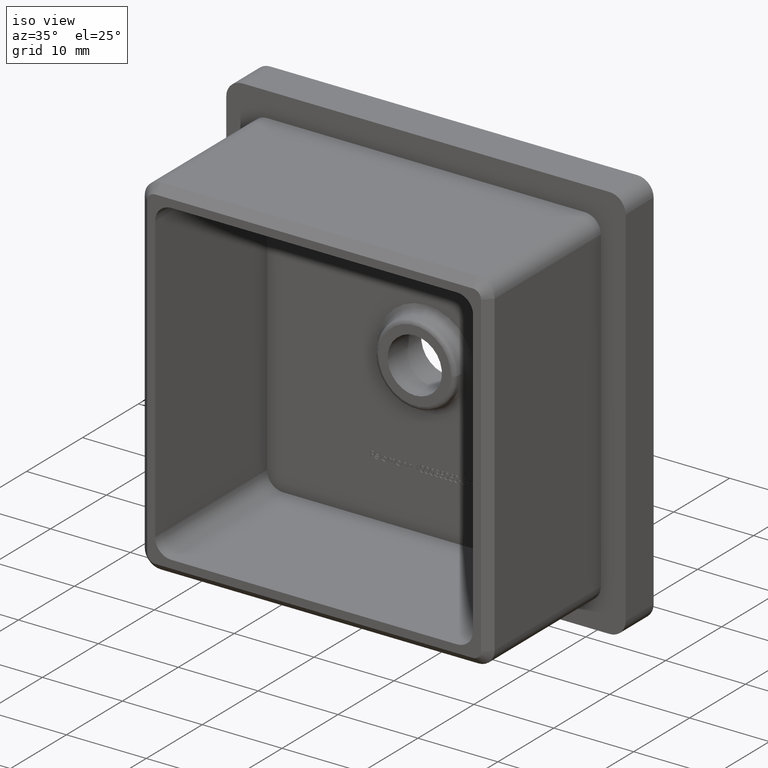
[diagram: clean part render]
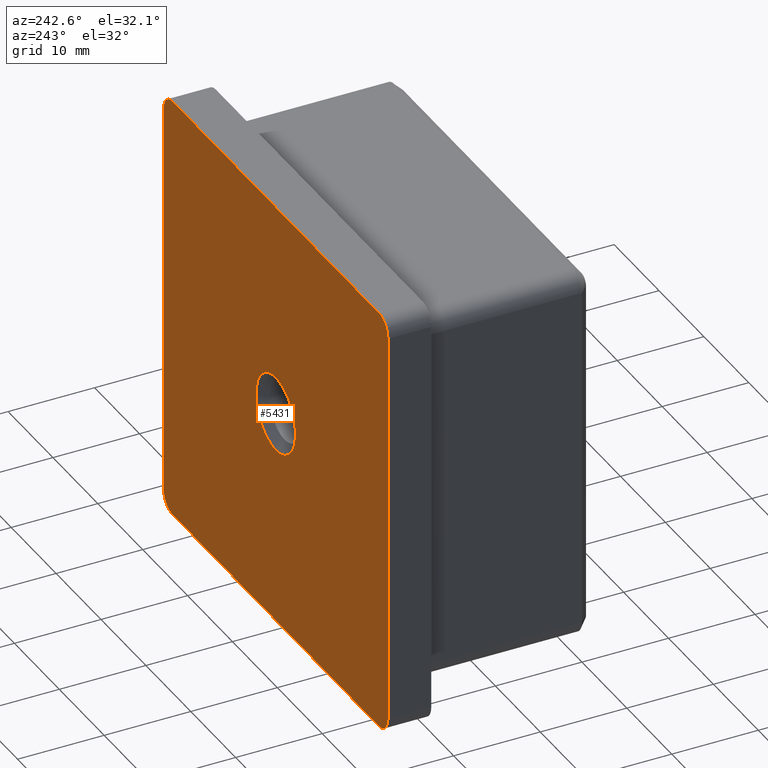
[diagram: tour spotlight — one face highlighted and labeled with its STEP entity id]
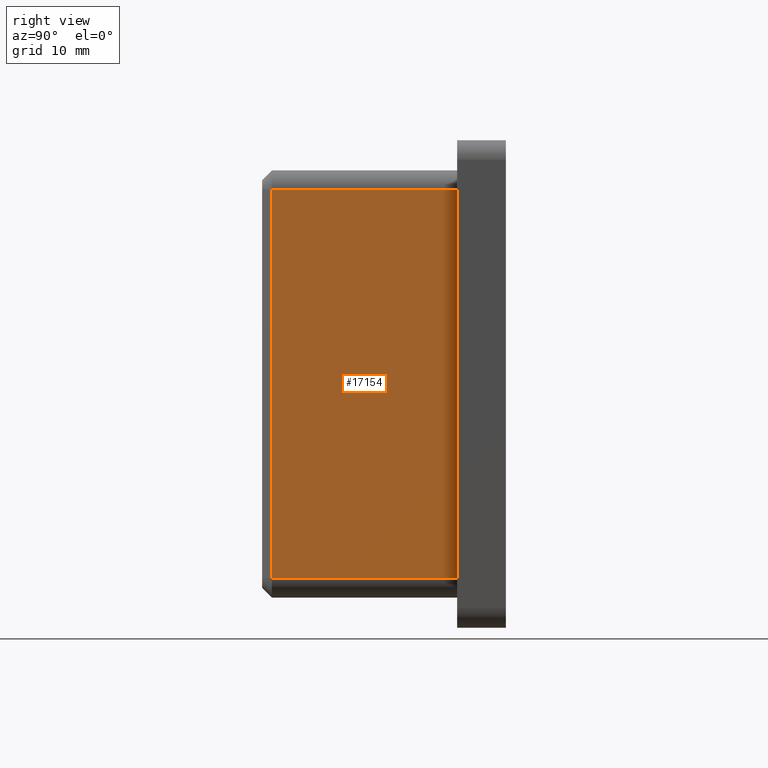
[diagram: tour spotlight — one face highlighted and labeled with its STEP entity id]
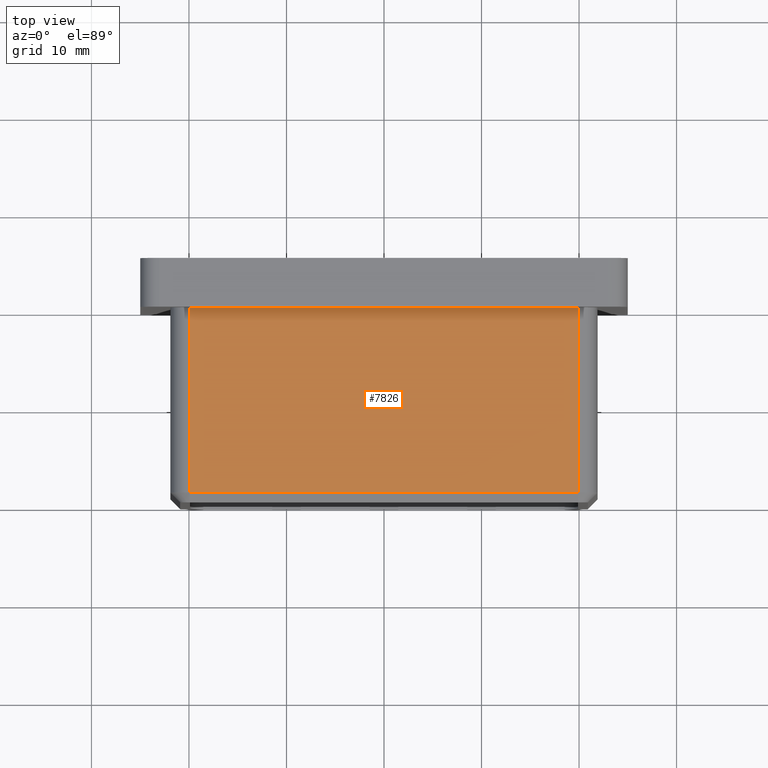
[diagram: tour spotlight — one face highlighted and labeled with its STEP entity id]
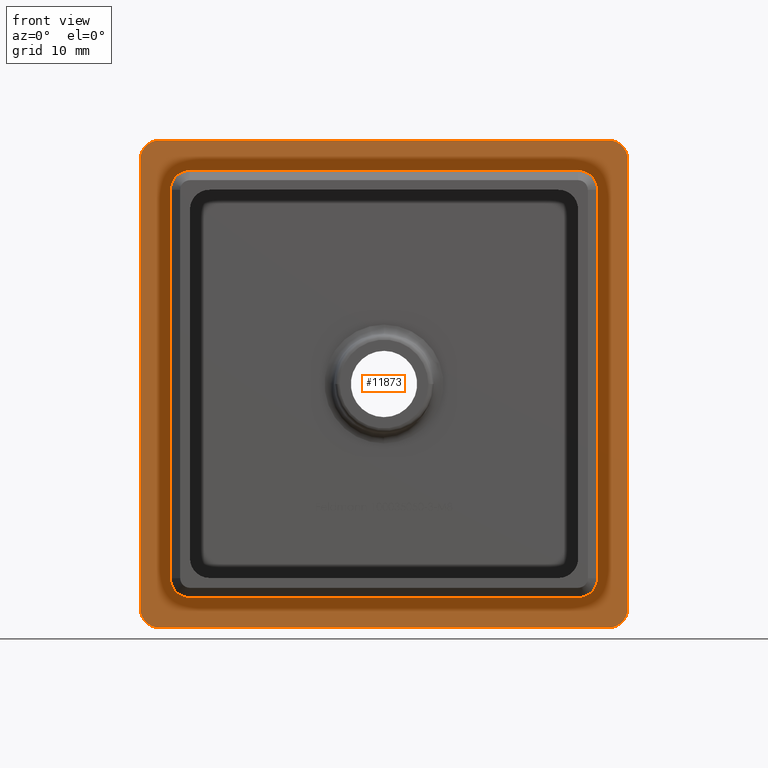
[diagram: tour spotlight — one face highlighted and labeled with its STEP entity id]
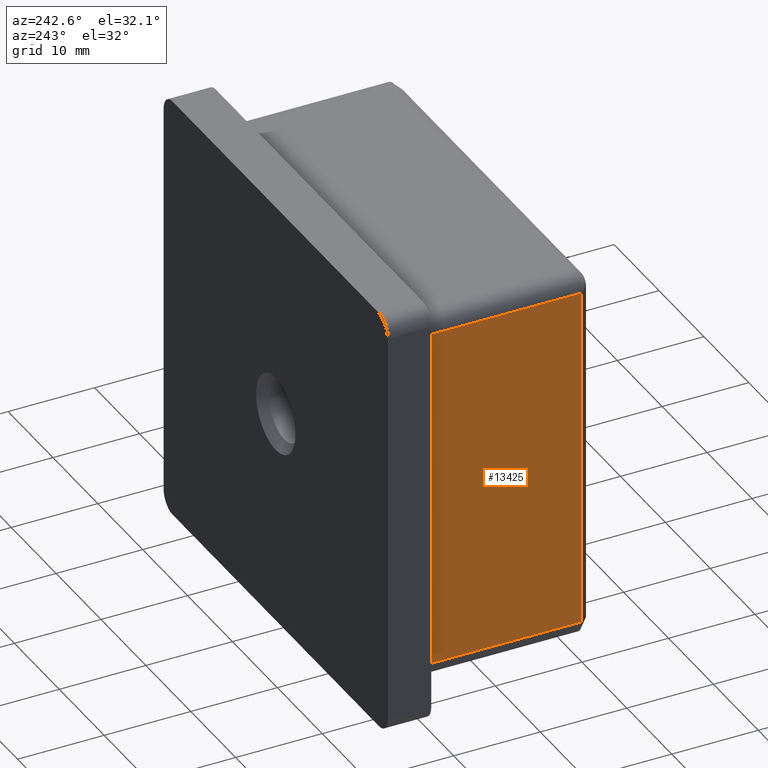
[diagram: tour spotlight — one face highlighted and labeled with its STEP entity id]
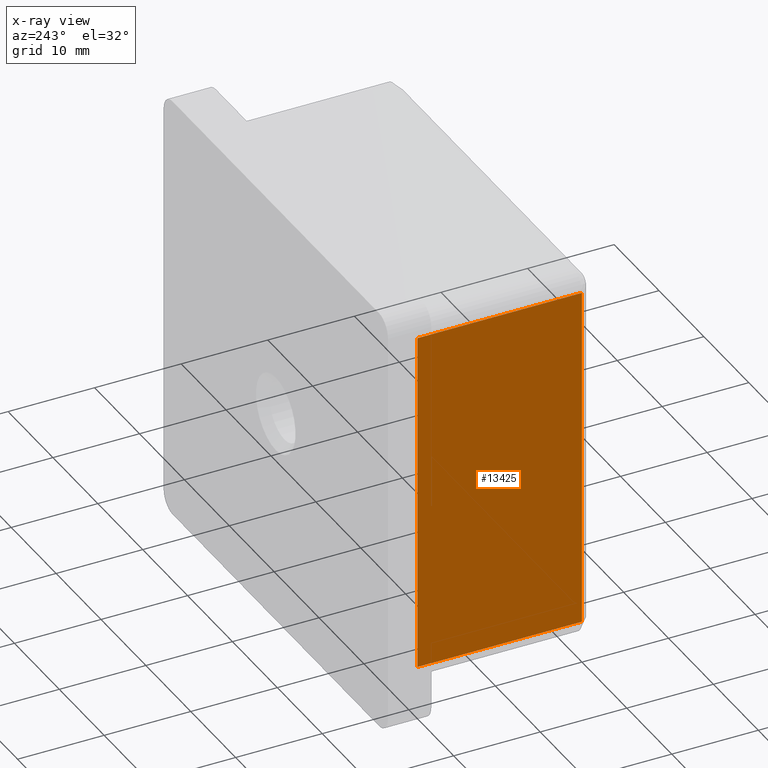
[diagram: x-ray of the same camera — body ghosted, this tour face saturated]
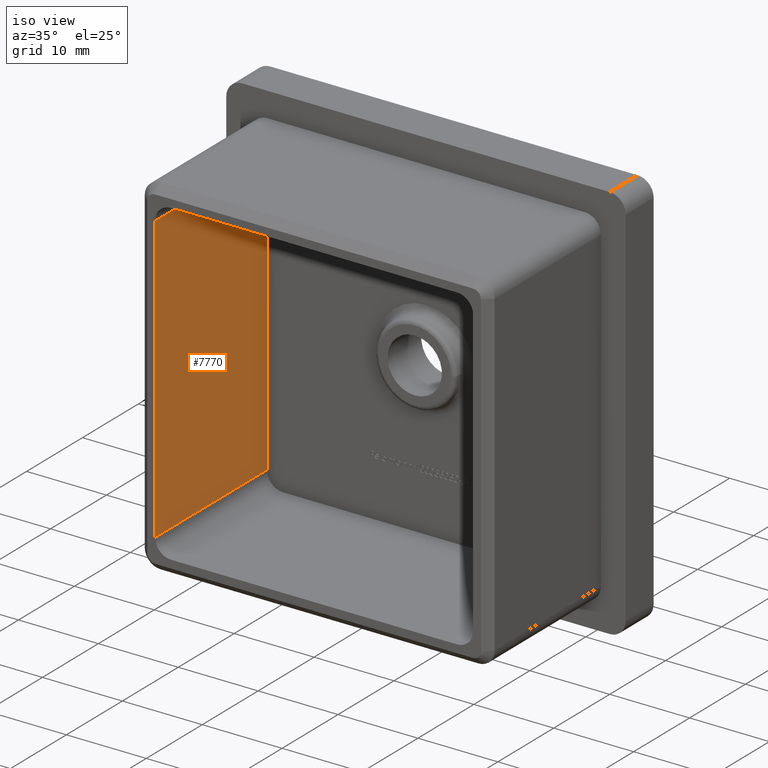
[diagram: tour spotlight — one face highlighted and labeled with its STEP entity id]
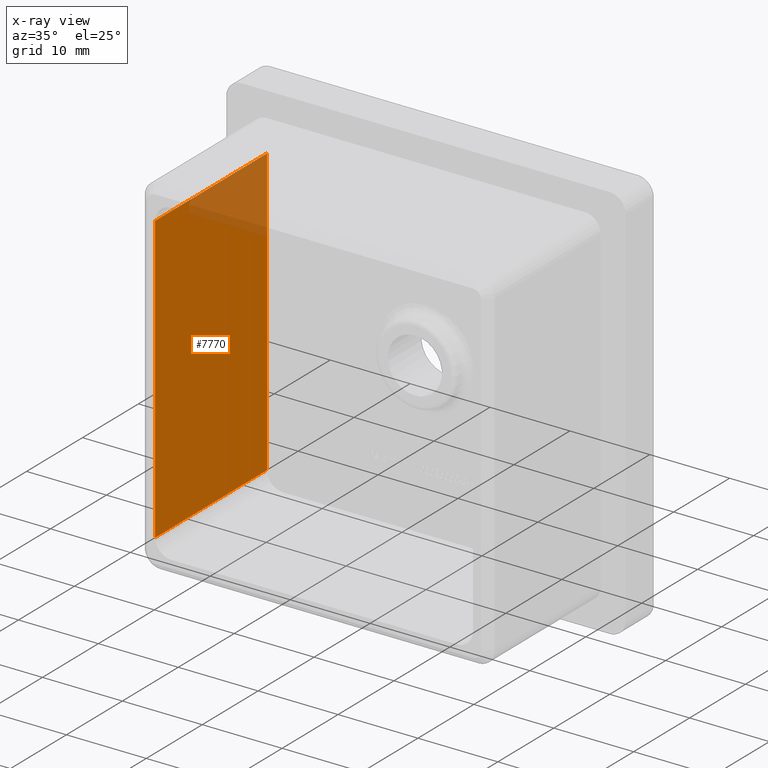
[diagram: x-ray of the same camera — body ghosted, this tour face saturated]
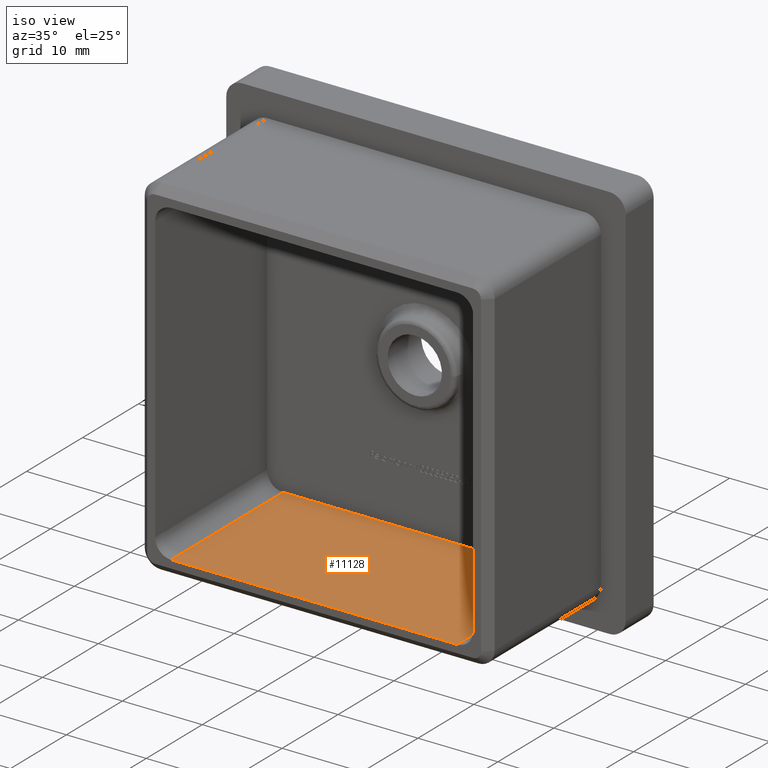
[diagram: tour spotlight — one face highlighted and labeled with its STEP entity id]
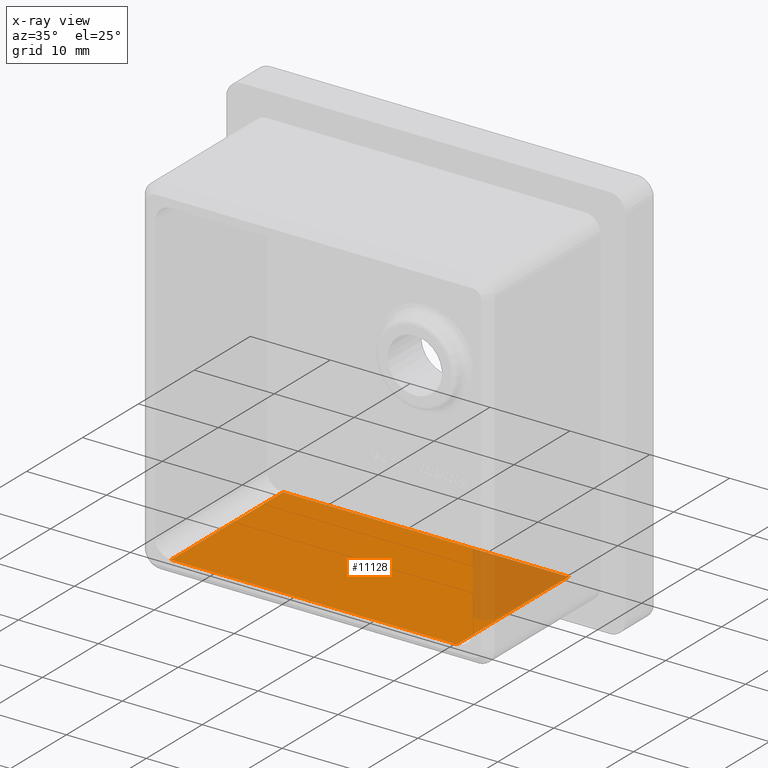
[diagram: x-ray of the same camera — body ghosted, this tour face saturated]
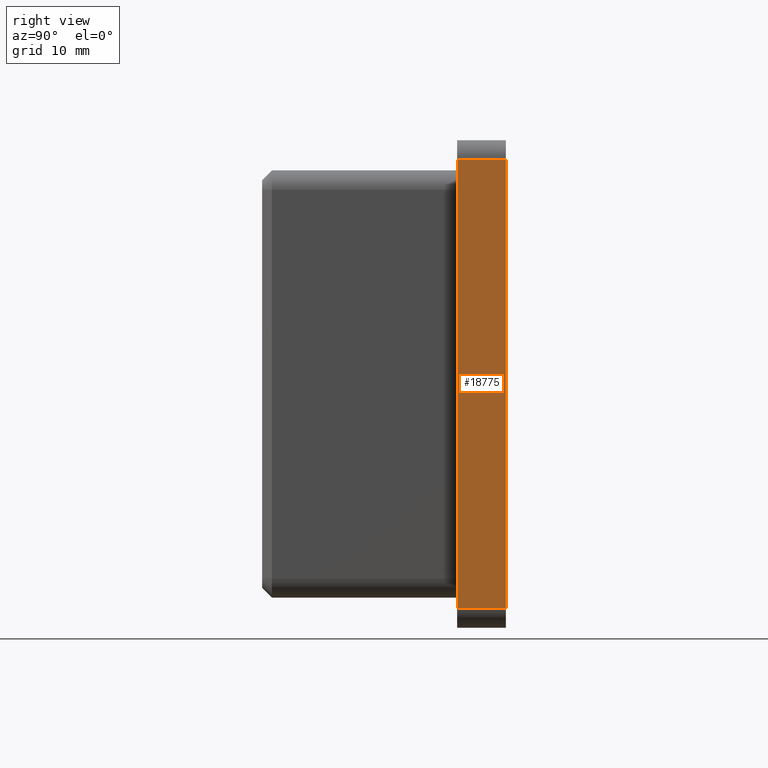
[diagram: tour spotlight — one face highlighted and labeled with its STEP entity id]
A machine part: a face-by-face anatomy tour. The part has 332 B-rep faces; the first image is the clean iso view, then the 8 largest visible faces are spotlighted one at a time (largest first), each with its STEP entity span.

Face 1 — auxiliary view, entity #5431. In plain terms, the highlighted planar face has unit normal (0, 1, 0).
Definition (entity closure, byte-faithful):
#462 = CARTESIAN_POINT ( 'NONE',  ( 22.99999999999999600, 5.000000000000000000, 24.99999999999998600 ) ) ;
#477 = DIRECTION ( 'NONE',  ( 0.0000000000000000000, 1.000000000000000000, 0.0000000000000000000 ) ) ;
#705 = EDGE_CURVE ( 'NONE', #9922, #11034, #8946, .T. ) ;
#1300 = ORIENTED_EDGE ( 'NONE', *, *, #18611, .T. ) ;
#1315 = AXIS2_PLACEMENT_3D ( 'NONE', #5090, #1913, #10976 ) ;
#1591 = VERTEX_POINT ( 'NONE', #2778 ) ;
#1866 = DIRECTION ( 'NONE',  ( -0.0000000000000000000, -1.000000000000000000, -0.0000000000000000000 ) ) ;
#1893 = AXIS2_PLACEMENT_3D ( 'NONE', #17430, #2760, #5679 ) ;
#1913 = DIRECTION ( 'NONE',  ( -0.0000000000000000000, -1.000000000000000000, -0.0000000000000000000 ) ) ;
#2083 = EDGE_CURVE ( 'NONE', #1591, #13222, #14013, .T. ) ;
#2332 = DIRECTION ( 'NONE',  ( 0.0000000000000000000, 0.0000000000000000000, 1.000000000000000000 ) ) ;
#2363 = EDGE_CURVE ( 'NONE', #14163, #9922, #16545, .T. ) ;
#2387 = DIRECTION ( 'NONE',  ( 0.0000000000000000000, 0.0000000000000000000, 1.000000000000000000 ) ) ;
#2587 = DIRECTION ( 'NONE',  ( 1.000000000000000000, 0.0000000000000000000, 0.0000000000000000000 ) ) ;
#2590 = ORIENTED_EDGE ( 'NONE', *, *, #5375, .T. ) ;
#2623 = VERTEX_POINT ( 'NONE', #12609 ) ;
#2626 = ORIENTED_EDGE ( 'NONE', *, *, #7313, .T. ) ;
#2760 = DIRECTION ( 'NONE',  ( 0.0000000000000000000, 1.000000000000000000, 0.0000000000000000000 ) ) ;
#2778 = CARTESIAN_POINT ( 'NONE',  ( 2.449293598294707400E-016, 5.000000000000000000, 4.399999999999979000 ) ) ;
#2948 = EDGE_LOOP ( 'NONE', ( #12728, #14418 ) ) ;
#2990 = AXIS2_PLACEMENT_3D ( 'NONE', #17160, #5488, #2387 ) ;
#3396 = LINE ( 'NONE', #6520, #13564 ) ;
#3869 = DIRECTION ( 'NONE',  ( -0.0000000000000000000, -0.0000000000000000000, -1.000000000000000000 ) ) ;
#4011 = CARTESIAN_POINT ( 'NONE',  ( -24.99999999999998900, 5.000000000000000000, 22.99999999999998600 ) ) ;
#4022 = DIRECTION ( 'NONE',  ( 0.0000000000000000000, 1.000000000000000000, 0.0000000000000000000 ) ) ;
#4675 = DIRECTION ( 'NONE',  ( -1.000000000000000000, -0.0000000000000000000, -0.0000000000000000000 ) ) ;
#5090 = CARTESIAN_POINT ( 'NONE',  ( 2.449293598294707400E-016, 5.000000000000000000, 0.0000000000000000000 ) ) ;
#5223 = ORIENTED_EDGE ( 'NONE', *, *, #17707, .T. ) ;
#5375 = EDGE_CURVE ( 'NONE', #2623, #16310, #13954, .T. ) ;
#5431 = ADVANCED_FACE ( 'NONE', ( #14185, #9107 ), #12929, .T. ) ;
#5488 = DIRECTION ( 'NONE',  ( 0.0000000000000000000, 1.000000000000000000, 0.0000000000000000000 ) ) ;
#5679 = DIRECTION ( 'NONE',  ( 0.0000000000000000000, 0.0000000000000000000, 1.000000000000000000 ) ) ;
#6034 = CARTESIAN_POINT ( 'NONE',  ( -25.00000000000000400, 5.000000000000000000, -25.00000000000000000 ) ) ;
#6520 = CARTESIAN_POINT ( 'NONE',  ( -25.00000000000000400, 5.000000000000000000, -25.00000000000000000 ) ) ;
#6722 = DIRECTION ( 'NONE',  ( 0.0000000000000000000, 1.000000000000000000, 0.0000000000000000000 ) ) ;
#6931 = LINE ( 'NONE', #18735, #14790 ) ;
#7061 = CARTESIAN_POINT ( 'NONE',  ( 24.99999999999999600, 5.000000000000000000, -23.00000000000000000 ) ) ;
#7068 = CIRCLE ( 'NONE', #1893, 2.000000000000001800 ) ;
#7313 = EDGE_CURVE ( 'NONE', #16310, #14163, #3396, .T. ) ;
#7321 = LINE ( 'NONE', #6034, #14722 ) ;
#7426 = CIRCLE ( 'NONE', #1315, 4.399999999999979000 ) ;
#7821 = DIRECTION ( 'NONE',  ( 0.0000000000000000000, 0.0000000000000000000, 1.000000000000000000 ) ) ;
#8416 = ORIENTED_EDGE ( 'NONE', *, *, #8870, .T. ) ;
#8870 = EDGE_CURVE ( 'NONE', #11094, #2623, #7321, .T. ) ;
#8946 = LINE ( 'NONE', #17495, #14260 ) ;
#9031 = ORIENTED_EDGE ( 'NONE', *, *, #2363, .T. ) ;
#9107 = FACE_OUTER_BOUND ( 'NONE', #18579, .T. ) ;
#9922 = VERTEX_POINT ( 'NONE', #15979 ) ;
#9932 = EDGE_CURVE ( 'NONE', #12790, #11094, #7068, .T. ) ;
#9971 = ORIENTED_EDGE ( 'NONE', *, *, #9932, .T. ) ;
#10057 = CARTESIAN_POINT ( 'NONE',  ( -22.99999999999999300, 5.000000000000000000, 22.99999999999998600 ) ) ;
#10206 = AXIS2_PLACEMENT_3D ( 'NONE', #15593, #6722, #18603 ) ;
#10976 = DIRECTION ( 'NONE',  ( 0.0000000000000000000, 0.0000000000000000000, 1.000000000000000000 ) ) ;
#11034 = VERTEX_POINT ( 'NONE', #462 ) ;
#11094 = VERTEX_POINT ( 'NONE', #12649 ) ;
#11429 = CARTESIAN_POINT ( 'NONE',  ( 24.99999999999999600, 5.000000000000000000, 22.99999999999998600 ) ) ;
#12141 = AXIS2_PLACEMENT_3D ( 'NONE', #16582, #1866, #16709 ) ;
#12418 = DIRECTION ( 'NONE',  ( 2.775557561562891800E-016, 0.0000000000000000000, 1.000000000000000000 ) ) ;
#12609 = CARTESIAN_POINT ( 'NONE',  ( -23.00000000000000700, 5.000000000000000000, -25.00000000000000000 ) ) ;
#12649 = CARTESIAN_POINT ( 'NONE',  ( 22.99999999999999600, 5.000000000000000000, -25.00000000000000000 ) ) ;
#12728 = ORIENTED_EDGE ( 'NONE', *, *, #2083, .T. ) ;
#12790 = VERTEX_POINT ( 'NONE', #7061 ) ;
#12929 = PLANE ( 'NONE',  #10206 ) ;
#13222 = VERTEX_POINT ( 'NONE', #16249 ) ;
#13564 = VECTOR ( 'NONE', #12418, 1000.000000000000000 ) ;
#13954 = CIRCLE ( 'NONE', #2990, 2.000000000000001800 ) ;
#14013 = CIRCLE ( 'NONE', #12141, 4.399999999999979000 ) ;
#14131 = ORIENTED_EDGE ( 'NONE', *, *, #705, .T. ) ;
#14163 = VERTEX_POINT ( 'NONE', #4011 ) ;
#14185 = FACE_BOUND ( 'NONE', #2948, .T. ) ;
#14260 = VECTOR ( 'NONE', #2587, 1000.000000000000000 ) ;
#14418 = ORIENTED_EDGE ( 'NONE', *, *, #16122, .T. ) ;
#14478 = CARTESIAN_POINT ( 'NONE',  ( -25.00000000000000400, 5.000000000000000000, -23.00000000000000000 ) ) ;
#14722 = VECTOR ( 'NONE', #4675, 1000.000000000000000 ) ;
#14790 = VECTOR ( 'NONE', #3869, 1000.000000000000000 ) ;
#15593 = CARTESIAN_POINT ( 'NONE',  ( 0.0000000000000000000, 5.000000000000000000, 0.0000000000000000000 ) ) ;
#15979 = CARTESIAN_POINT ( 'NONE',  ( -22.99999999999999300, 5.000000000000000000, 24.99999999999998600 ) ) ;
#16122 = EDGE_CURVE ( 'NONE', #13222, #1591, #7426, .T. ) ;
#16249 = CARTESIAN_POINT ( 'NONE',  ( 7.837739514543038200E-016, 5.000000000000000000, -4.399999999999979000 ) ) ;
#16310 = VERTEX_POINT ( 'NONE', #14478 ) ;
#16545 = CIRCLE ( 'NONE', #17129, 2.000000000000001800 ) ;
#16582 = CARTESIAN_POINT ( 'NONE',  ( 2.449293598294707400E-016, 5.000000000000000000, 0.0000000000000000000 ) ) ;
#16709 = DIRECTION ( 'NONE',  ( 0.0000000000000000000, 0.0000000000000000000, 1.000000000000000000 ) ) ;
#17129 = AXIS2_PLACEMENT_3D ( 'NONE', #10057, #4022, #2332 ) ;
#17160 = CARTESIAN_POINT ( 'NONE',  ( -23.00000000000000700, 5.000000000000000000, -23.00000000000000000 ) ) ;
#17255 = AXIS2_PLACEMENT_3D ( 'NONE', #18061, #477, #7821 ) ;
#17430 = CARTESIAN_POINT ( 'NONE',  ( 22.99999999999999600, 5.000000000000000000, -23.00000000000000000 ) ) ;
#17495 = CARTESIAN_POINT ( 'NONE',  ( -24.99999999999998900, 5.000000000000000000, 24.99999999999998600 ) ) ;
#17707 = EDGE_CURVE ( 'NONE', #11034, #18901, #18802, .T. ) ;
#18061 = CARTESIAN_POINT ( 'NONE',  ( 23.00000000000000000, 5.000000000000000000, 22.99999999999998600 ) ) ;
#18579 = EDGE_LOOP ( 'NONE', ( #1300, #9971, #8416, #2590, #2626, #9031, #14131, #5223 ) ) ;
#18603 = DIRECTION ( 'NONE',  ( 0.0000000000000000000, -0.0000000000000000000, 1.000000000000000000 ) ) ;
#18611 = EDGE_CURVE ( 'NONE', #18901, #12790, #6931, .T. ) ;
#18735 = CARTESIAN_POINT ( 'NONE',  ( 24.99999999999999600, 5.000000000000000000, -25.00000000000000000 ) ) ;
#18802 = CIRCLE ( 'NONE', #17255, 2.000000000000001800 ) ;
#18901 = VERTEX_POINT ( 'NONE', #11429 ) ;

Face 2 — right view, entity #17154. In plain terms, the highlighted planar face has unit normal (-1, 0, -0).
Definition (entity closure, byte-faithful):
#1531 = CARTESIAN_POINT ( 'NONE',  ( 21.89999999999998800, -18.99999999999999300, 19.89999999999998800 ) ) ;
#1546 = EDGE_CURVE ( 'NONE', #12508, #16020, #2442, .T. ) ;
#2317 = CARTESIAN_POINT ( 'NONE',  ( 21.89999999999998800, -20.00000000000000000, 19.89999999999998800 ) ) ;
#2442 = LINE ( 'NONE', #17570, #6838 ) ;
#2838 = DIRECTION ( 'NONE',  ( 0.0000000000000000000, 0.0000000000000000000, -1.000000000000000000 ) ) ;
#3939 = DIRECTION ( 'NONE',  ( -0.0000000000000000000, -0.0000000000000000000, 1.000000000000000000 ) ) ;
#4058 = ORIENTED_EDGE ( 'NONE', *, *, #10841, .T. ) ;
#4263 = CARTESIAN_POINT ( 'NONE',  ( 21.89999999999998800, 0.0000000000000000000, -19.89999999999998800 ) ) ;
#4764 = EDGE_LOOP ( 'NONE', ( #4058, #19211, #12051, #5409 ) ) ;
#5409 = ORIENTED_EDGE ( 'NONE', *, *, #9433, .T. ) ;
#5863 = LINE ( 'NONE', #2317, #13066 ) ;
#6377 = LINE ( 'NONE', #15755, #14962 ) ;
#6838 = VECTOR ( 'NONE', #2838, 1000.000000000000000 ) ;
#7260 = DIRECTION ( 'NONE',  ( 0.0000000000000000000, 1.000000000000000000, 0.0000000000000000000 ) ) ;
#8315 = EDGE_CURVE ( 'NONE', #16020, #10614, #6377, .T. ) ;
#9433 = EDGE_CURVE ( 'NONE', #10614, #10420, #13528, .T. ) ;
#9930 = CARTESIAN_POINT ( 'NONE',  ( 21.89999999999998800, 0.0000000000000000000, 19.89999999999998800 ) ) ;
#10420 = VERTEX_POINT ( 'NONE', #9930 ) ;
#10421 = CARTESIAN_POINT ( 'NONE',  ( 21.89999999999998800, -18.99999999999999300, -19.89999999999998800 ) ) ;
#10614 = VERTEX_POINT ( 'NONE', #4263 ) ;
#10841 = EDGE_CURVE ( 'NONE', #10420, #12508, #5863, .T. ) ;
#12051 = ORIENTED_EDGE ( 'NONE', *, *, #8315, .T. ) ;
#12508 = VERTEX_POINT ( 'NONE', #1531 ) ;
#12904 = PLANE ( 'NONE',  #17867 ) ;
#13066 = VECTOR ( 'NONE', #15072, 1000.000000000000000 ) ;
#13528 = LINE ( 'NONE', #17489, #15418 ) ;
#14962 = VECTOR ( 'NONE', #7260, 1000.000000000000000 ) ;
#15072 = DIRECTION ( 'NONE',  ( -0.0000000000000000000, -1.000000000000000000, -0.0000000000000000000 ) ) ;
#15418 = VECTOR ( 'NONE', #3939, 1000.000000000000000 ) ;
#15755 = CARTESIAN_POINT ( 'NONE',  ( 21.89999999999998800, -20.00000000000000000, -19.89999999999998800 ) ) ;
#16020 = VERTEX_POINT ( 'NONE', #10421 ) ;
#16128 = CARTESIAN_POINT ( 'NONE',  ( 21.89999999999998800, -20.00000000000000000, 21.89999999999998800 ) ) ;
#16649 = FACE_OUTER_BOUND ( 'NONE', #4764, .T. ) ;
#17154 = ADVANCED_FACE ( 'NONE', ( #16649 ), #12904, .F. ) ;
#17489 = CARTESIAN_POINT ( 'NONE',  ( 21.89999999999998800, 0.0000000000000000000, 21.89999999999998800 ) ) ;
#17521 = DIRECTION ( 'NONE',  ( -1.000000000000000000, 0.0000000000000000000, -0.0000000000000000000 ) ) ;
#17570 = CARTESIAN_POINT ( 'NONE',  ( 21.89999999999998800, -18.99999999999999300, -19.89999999999998800 ) ) ;
#17867 = AXIS2_PLACEMENT_3D ( 'NONE', #16128, #17521, #18897 ) ;
#18897 = DIRECTION ( 'NONE',  ( -0.0000000000000000000, 0.0000000000000000000, 1.000000000000000000 ) ) ;
#19211 = ORIENTED_EDGE ( 'NONE', *, *, #1546, .T. ) ;

Face 3 — top view, entity #7826. In plain terms, the highlighted planar face has unit normal (0, 0, -1).
Definition (entity closure, byte-faithful):
#1392 = EDGE_LOOP ( 'NONE', ( #3796, #6098, #11606, #11504 ) ) ;
#1826 = VERTEX_POINT ( 'NONE', #18008 ) ;
#2495 = EDGE_CURVE ( 'NONE', #10761, #1826, #11684, .T. ) ;
#2500 = CARTESIAN_POINT ( 'NONE',  ( -21.89999999999998800, -20.00000000000000000, 21.89999999999998800 ) ) ;
#2715 = EDGE_CURVE ( 'NONE', #8369, #15056, #9392, .T. ) ;
#2909 = CARTESIAN_POINT ( 'NONE',  ( 19.89999999999998800, -18.99999999999999300, 21.89999999999998800 ) ) ;
#3796 = ORIENTED_EDGE ( 'NONE', *, *, #16210, .T. ) ;
#3985 = DIRECTION ( 'NONE',  ( 0.0000000000000000000, 0.0000000000000000000, -1.000000000000000000 ) ) ;
#4071 = DIRECTION ( 'NONE',  ( 1.000000000000000000, 0.0000000000000000000, 0.0000000000000000000 ) ) ;
#4796 = DIRECTION ( 'NONE',  ( -1.000000000000000000, 0.0000000000000000000, -0.0000000000000000000 ) ) ;
#5209 = DIRECTION ( 'NONE',  ( 0.0000000000000000000, 1.000000000000000000, 0.0000000000000000000 ) ) ;
#5442 = VECTOR ( 'NONE', #4071, 1000.000000000000000 ) ;
#5861 = CARTESIAN_POINT ( 'NONE',  ( -21.89999999999998800, 0.0000000000000000000, 21.89999999999998800 ) ) ;
#6098 = ORIENTED_EDGE ( 'NONE', *, *, #2715, .T. ) ;
#6396 = CARTESIAN_POINT ( 'NONE',  ( -19.89999999999998800, -18.99999999999999300, 21.89999999999998800 ) ) ;
#7039 = EDGE_CURVE ( 'NONE', #15056, #10761, #15928, .T. ) ;
#7826 = ADVANCED_FACE ( 'NONE', ( #16831 ), #11426, .F. ) ;
#8347 = CARTESIAN_POINT ( 'NONE',  ( -19.89999999999998800, -20.00000000000000000, 21.89999999999998800 ) ) ;
#8369 = VERTEX_POINT ( 'NONE', #6396 ) ;
#8888 = DIRECTION ( 'NONE',  ( -1.000000000000000000, -0.0000000000000000000, -0.0000000000000000000 ) ) ;
#9347 = AXIS2_PLACEMENT_3D ( 'NONE', #2500, #3985, #4796 ) ;
#9392 = LINE ( 'NONE', #12932, #5442 ) ;
#10761 = VERTEX_POINT ( 'NONE', #15532 ) ;
#11426 = PLANE ( 'NONE',  #9347 ) ;
#11504 = ORIENTED_EDGE ( 'NONE', *, *, #2495, .T. ) ;
#11606 = ORIENTED_EDGE ( 'NONE', *, *, #7039, .T. ) ;
#11684 = LINE ( 'NONE', #5861, #15155 ) ;
#12528 = CARTESIAN_POINT ( 'NONE',  ( 19.89999999999998800, -20.00000000000000000, 21.89999999999998800 ) ) ;
#12932 = CARTESIAN_POINT ( 'NONE',  ( 19.89999999999998800, -18.99999999999999300, 21.89999999999998800 ) ) ;
#15056 = VERTEX_POINT ( 'NONE', #2909 ) ;
#15155 = VECTOR ( 'NONE', #8888, 1000.000000000000000 ) ;
#15273 = LINE ( 'NONE', #8347, #15974 ) ;
#15532 = CARTESIAN_POINT ( 'NONE',  ( 19.89999999999998800, 0.0000000000000000000, 21.89999999999998800 ) ) ;
#15928 = LINE ( 'NONE', #12528, #18964 ) ;
#15974 = VECTOR ( 'NONE', #17224, 1000.000000000000000 ) ;
#16210 = EDGE_CURVE ( 'NONE', #1826, #8369, #15273, .T. ) ;
#16831 = FACE_OUTER_BOUND ( 'NONE', #1392, .T. ) ;
#17224 = DIRECTION ( 'NONE',  ( -0.0000000000000000000, -1.000000000000000000, -0.0000000000000000000 ) ) ;
#18008 = CARTESIAN_POINT ( 'NONE',  ( -19.89999999999998800, 0.0000000000000000000, 21.89999999999998800 ) ) ;
#18964 = VECTOR ( 'NONE', #5209, 1000.000000000000000 ) ;

Face 4 — front view, entity #11873. In plain terms, the highlighted planar face has unit normal (0, 1, 0).
Definition (entity closure, byte-faithful):
#19 = DIRECTION ( 'NONE',  ( 0.0000000000000000000, -0.0000000000000000000, 1.000000000000000000 ) ) ;
#93 = ORIENTED_EDGE ( 'NONE', *, *, #5520, .T. ) ;
#140 = CARTESIAN_POINT ( 'NONE',  ( 24.99999999999999600, 0.0000000000000000000, -23.00000000000000000 ) ) ;
#532 = VECTOR ( 'NONE', #6503, 1000.000000000000000 ) ;
#588 = AXIS2_PLACEMENT_3D ( 'NONE', #10690, #1868, #1805 ) ;
#735 = DIRECTION ( 'NONE',  ( -0.0000000000000000000, -0.0000000000000000000, -1.000000000000000000 ) ) ;
#740 = ORIENTED_EDGE ( 'NONE', *, *, #9433, .F. ) ;
#796 = CARTESIAN_POINT ( 'NONE',  ( 22.99999999999999600, 0.0000000000000000000, -25.00000000000000000 ) ) ;
#927 = CARTESIAN_POINT ( 'NONE',  ( -25.00000000000000400, 0.0000000000000000000, -25.00000000000000000 ) ) ;
#1360 = EDGE_CURVE ( 'NONE', #10614, #13365, #11003, .T. ) ;
#1606 = ORIENTED_EDGE ( 'NONE', *, *, #12577, .T. ) ;
#1629 = DIRECTION ( 'NONE',  ( 0.0000000000000000000, 1.000000000000000000, 0.0000000000000000000 ) ) ;
#1647 = CIRCLE ( 'NONE', #16891, 2.000000000000001800 ) ;
#1805 = DIRECTION ( 'NONE',  ( 0.0000000000000000000, 0.0000000000000000000, 1.000000000000000000 ) ) ;
#1826 = VERTEX_POINT ( 'NONE', #18008 ) ;
#1868 = DIRECTION ( 'NONE',  ( 0.0000000000000000000, 1.000000000000000000, 0.0000000000000000000 ) ) ;
#1970 = CARTESIAN_POINT ( 'NONE',  ( -25.00000000000000400, 0.0000000000000000000, -25.00000000000000000 ) ) ;
#2009 = ORIENTED_EDGE ( 'NONE', *, *, #11295, .F. ) ;
#2495 = EDGE_CURVE ( 'NONE', #10761, #1826, #11684, .T. ) ;
#2676 = CARTESIAN_POINT ( 'NONE',  ( -21.89999999999998800, 0.0000000000000000000, 21.89999999999998800 ) ) ;
#2734 = CARTESIAN_POINT ( 'NONE',  ( -24.99999999999998900, 0.0000000000000000000, 22.99999999999998600 ) ) ;
#3234 = VERTEX_POINT ( 'NONE', #7492 ) ;
#3258 = DIRECTION ( 'NONE',  ( -0.0000000000000000000, -1.000000000000000000, -0.0000000000000000000 ) ) ;
#3481 = LINE ( 'NONE', #9575, #18817 ) ;
#3548 = DIRECTION ( 'NONE',  ( 0.0000000000000000000, 1.000000000000000000, 0.0000000000000000000 ) ) ;
#3639 = AXIS2_PLACEMENT_3D ( 'NONE', #9737, #6748, #14114 ) ;
#3670 = EDGE_CURVE ( 'NONE', #12658, #17892, #10748, .T. ) ;
#3756 = ORIENTED_EDGE ( 'NONE', *, *, #4337, .T. ) ;
#3939 = DIRECTION ( 'NONE',  ( -0.0000000000000000000, -0.0000000000000000000, 1.000000000000000000 ) ) ;
#4197 = ORIENTED_EDGE ( 'NONE', *, *, #9126, .F. ) ;
#4209 = VECTOR ( 'NONE', #6454, 1000.000000000000000 ) ;
#4263 = CARTESIAN_POINT ( 'NONE',  ( 21.89999999999998800, 0.0000000000000000000, -19.89999999999998800 ) ) ;
#4274 = DIRECTION ( 'NONE',  ( 0.0000000000000000000, 0.0000000000000000000, 1.000000000000000000 ) ) ;
#4337 = EDGE_CURVE ( 'NONE', #14784, #5645, #7958, .T. ) ;
#4362 = ORIENTED_EDGE ( 'NONE', *, *, #2495, .F. ) ;
#4655 = LINE ( 'NONE', #13769, #4209 ) ;
#4694 = CARTESIAN_POINT ( 'NONE',  ( 19.89999999999998800, 0.0000000000000000000, 19.89999999999998800 ) ) ;
#5210 = CARTESIAN_POINT ( 'NONE',  ( 22.99999999999999600, 0.0000000000000000000, -23.00000000000000000 ) ) ;
#5519 = DIRECTION ( 'NONE',  ( 0.0000000000000000000, 1.000000000000000000, 0.0000000000000000000 ) ) ;
#5520 = EDGE_CURVE ( 'NONE', #16729, #1826, #1647, .T. ) ;
#5645 = VERTEX_POINT ( 'NONE', #2734 ) ;
#5734 = AXIS2_PLACEMENT_3D ( 'NONE', #13152, #5784, #13102 ) ;
#5784 = DIRECTION ( 'NONE',  ( -0.0000000000000000000, -1.000000000000000000, -0.0000000000000000000 ) ) ;
#5861 = CARTESIAN_POINT ( 'NONE',  ( -21.89999999999998800, 0.0000000000000000000, 21.89999999999998800 ) ) ;
#6264 = LINE ( 'NONE', #2676, #7677 ) ;
#6385 = AXIS2_PLACEMENT_3D ( 'NONE', #16480, #18056, #19 ) ;
#6439 = CARTESIAN_POINT ( 'NONE',  ( -21.89999999999998800, -0.0000000000000000000, -21.89999999999998800 ) ) ;
#6454 = DIRECTION ( 'NONE',  ( 1.000000000000000000, 0.0000000000000000000, 0.0000000000000000000 ) ) ;
#6503 = DIRECTION ( 'NONE',  ( 1.000000000000000000, 0.0000000000000000000, 0.0000000000000000000 ) ) ;
#6694 = CIRCLE ( 'NONE', #10893, 2.000000000000001800 ) ;
#6748 = DIRECTION ( 'NONE',  ( -0.0000000000000000000, -1.000000000000000000, -0.0000000000000000000 ) ) ;
#6943 = VERTEX_POINT ( 'NONE', #15127 ) ;
#7087 = CARTESIAN_POINT ( 'NONE',  ( -19.89999999999998800, 0.0000000000000000000, -19.89999999999998800 ) ) ;
#7120 = CARTESIAN_POINT ( 'NONE',  ( -21.89999999999998800, 0.0000000000000000000, -19.89999999999998800 ) ) ;
#7492 = CARTESIAN_POINT ( 'NONE',  ( 24.99999999999999600, 0.0000000000000000000, 22.99999999999998600 ) ) ;
#7677 = VECTOR ( 'NONE', #14520, 1000.000000000000000 ) ;
#7741 = VECTOR ( 'NONE', #8068, 1000.000000000000000 ) ;
#7857 = CARTESIAN_POINT ( 'NONE',  ( 22.99999999999999600, 0.0000000000000000000, 24.99999999999998600 ) ) ;
#7958 = CIRCLE ( 'NONE', #5734, 2.000000000000001800 ) ;
#8068 = DIRECTION ( 'NONE',  ( -1.000000000000000000, -0.0000000000000000000, -0.0000000000000000000 ) ) ;
#8202 = EDGE_CURVE ( 'NONE', #9755, #16792, #15191, .T. ) ;
#8251 = EDGE_LOOP ( 'NONE', ( #740, #13231, #2009, #14514, #8274, #93, #4362, #1606 ) ) ;
#8274 = ORIENTED_EDGE ( 'NONE', *, *, #14680, .F. ) ;
#8404 = DIRECTION ( 'NONE',  ( 0.0000000000000000000, 0.0000000000000000000, 1.000000000000000000 ) ) ;
#8489 = VECTOR ( 'NONE', #9892, 1000.000000000000000 ) ;
#8844 = VERTEX_POINT ( 'NONE', #7120 ) ;
#8888 = DIRECTION ( 'NONE',  ( -1.000000000000000000, -0.0000000000000000000, -0.0000000000000000000 ) ) ;
#9105 = CIRCLE ( 'NONE', #18709, 2.000000000000001800 ) ;
#9126 = EDGE_CURVE ( 'NONE', #9755, #5645, #9408, .T. ) ;
#9146 = CARTESIAN_POINT ( 'NONE',  ( -22.99999999999999300, 0.0000000000000000000, 24.99999999999998600 ) ) ;
#9400 = CARTESIAN_POINT ( 'NONE',  ( 19.89999999999998800, 0.0000000000000000000, -21.89999999999998800 ) ) ;
#9408 = LINE ( 'NONE', #927, #8489 ) ;
#9433 = EDGE_CURVE ( 'NONE', #10614, #10420, #13528, .T. ) ;
#9575 = CARTESIAN_POINT ( 'NONE',  ( 24.99999999999999600, 0.0000000000000000000, -25.00000000000000000 ) ) ;
#9737 = CARTESIAN_POINT ( 'NONE',  ( -23.00000000000000700, 0.0000000000000000000, -23.00000000000000000 ) ) ;
#9755 = VERTEX_POINT ( 'NONE', #11425 ) ;
#9838 = LINE ( 'NONE', #1970, #7741 ) ;
#9892 = DIRECTION ( 'NONE',  ( 2.775557561562891800E-016, 0.0000000000000000000, 1.000000000000000000 ) ) ;
#9930 = CARTESIAN_POINT ( 'NONE',  ( 21.89999999999998800, 0.0000000000000000000, 19.89999999999998800 ) ) ;
#10281 = CARTESIAN_POINT ( 'NONE',  ( -23.00000000000000700, 0.0000000000000000000, -25.00000000000000000 ) ) ;
#10420 = VERTEX_POINT ( 'NONE', #9930 ) ;
#10614 = VERTEX_POINT ( 'NONE', #4263 ) ;
#10690 = CARTESIAN_POINT ( 'NONE',  ( 19.89999999999998800, 0.0000000000000000000, -19.89999999999998800 ) ) ;
#10748 = CIRCLE ( 'NONE', #16399, 2.000000000000001800 ) ;
#10761 = VERTEX_POINT ( 'NONE', #15532 ) ;
#10893 = AXIS2_PLACEMENT_3D ( 'NONE', #7087, #5519, #4274 ) ;
#10936 = EDGE_CURVE ( 'NONE', #12658, #16792, #9838, .T. ) ;
#11003 = CIRCLE ( 'NONE', #588, 2.000000000000001800 ) ;
#11295 = EDGE_CURVE ( 'NONE', #6943, #13365, #12829, .T. ) ;
#11379 = ORIENTED_EDGE ( 'NONE', *, *, #8202, .T. ) ;
#11425 = CARTESIAN_POINT ( 'NONE',  ( -25.00000000000000400, 0.0000000000000000000, -23.00000000000000000 ) ) ;
#11510 = DIRECTION ( 'NONE',  ( 0.0000000000000000000, 0.0000000000000000000, 1.000000000000000000 ) ) ;
#11684 = LINE ( 'NONE', #5861, #15155 ) ;
#11873 = ADVANCED_FACE ( 'NONE', ( #15380, #17249 ), #17934, .F. ) ;
#12311 = ORIENTED_EDGE ( 'NONE', *, *, #13930, .F. ) ;
#12469 = ORIENTED_EDGE ( 'NONE', *, *, #13574, .T. ) ;
#12577 = EDGE_CURVE ( 'NONE', #10761, #10420, #9105, .T. ) ;
#12658 = VERTEX_POINT ( 'NONE', #796 ) ;
#12829 = LINE ( 'NONE', #6439, #532 ) ;
#12940 = VERTEX_POINT ( 'NONE', #7857 ) ;
#13102 = DIRECTION ( 'NONE',  ( 0.0000000000000000000, 0.0000000000000000000, 1.000000000000000000 ) ) ;
#13130 = EDGE_LOOP ( 'NONE', ( #15019, #17907, #13158, #12469, #12311, #3756, #4197, #11379 ) ) ;
#13152 = CARTESIAN_POINT ( 'NONE',  ( -22.99999999999999300, 0.0000000000000000000, 22.99999999999998600 ) ) ;
#13158 = ORIENTED_EDGE ( 'NONE', *, *, #16172, .F. ) ;
#13231 = ORIENTED_EDGE ( 'NONE', *, *, #1360, .T. ) ;
#13348 = CARTESIAN_POINT ( 'NONE',  ( -21.89999999999998800, 0.0000000000000000000, 19.89999999999998800 ) ) ;
#13365 = VERTEX_POINT ( 'NONE', #9400 ) ;
#13523 = DIRECTION ( 'NONE',  ( 0.0000000000000000000, 0.0000000000000000000, 1.000000000000000000 ) ) ;
#13528 = LINE ( 'NONE', #17489, #15418 ) ;
#13574 = EDGE_CURVE ( 'NONE', #3234, #12940, #17451, .T. ) ;
#13769 = CARTESIAN_POINT ( 'NONE',  ( -24.99999999999998900, 0.0000000000000000000, 24.99999999999998600 ) ) ;
#13930 = EDGE_CURVE ( 'NONE', #14784, #12940, #4655, .T. ) ;
#14114 = DIRECTION ( 'NONE',  ( 0.0000000000000000000, 0.0000000000000000000, 1.000000000000000000 ) ) ;
#14514 = ORIENTED_EDGE ( 'NONE', *, *, #17175, .T. ) ;
#14520 = DIRECTION ( 'NONE',  ( 0.0000000000000000000, -0.0000000000000000000, -1.000000000000000000 ) ) ;
#14680 = EDGE_CURVE ( 'NONE', #16729, #8844, #6264, .T. ) ;
#14784 = VERTEX_POINT ( 'NONE', #9146 ) ;
#14915 = DIRECTION ( 'NONE',  ( 0.0000000000000000000, 0.0000000000000000000, 1.000000000000000000 ) ) ;
#15019 = ORIENTED_EDGE ( 'NONE', *, *, #10936, .F. ) ;
#15127 = CARTESIAN_POINT ( 'NONE',  ( -19.89999999999998800, 0.0000000000000000000, -21.89999999999998800 ) ) ;
#15155 = VECTOR ( 'NONE', #8888, 1000.000000000000000 ) ;
#15191 = CIRCLE ( 'NONE', #3639, 2.000000000000001800 ) ;
#15380 = FACE_OUTER_BOUND ( 'NONE', #13130, .T. ) ;
#15418 = VECTOR ( 'NONE', #3939, 1000.000000000000000 ) ;
#15532 = CARTESIAN_POINT ( 'NONE',  ( 19.89999999999998800, 0.0000000000000000000, 21.89999999999998800 ) ) ;
#15849 = DIRECTION ( 'NONE',  ( -0.0000000000000000000, -1.000000000000000000, -0.0000000000000000000 ) ) ;
#16172 = EDGE_CURVE ( 'NONE', #3234, #17892, #3481, .T. ) ;
#16399 = AXIS2_PLACEMENT_3D ( 'NONE', #5210, #15849, #8404 ) ;
#16480 = CARTESIAN_POINT ( 'NONE',  ( 0.0000000000000000000, 0.0000000000000000000, 0.0000000000000000000 ) ) ;
#16528 = CARTESIAN_POINT ( 'NONE',  ( 23.00000000000000000, 0.0000000000000000000, 22.99999999999998600 ) ) ;
#16729 = VERTEX_POINT ( 'NONE', #13348 ) ;
#16792 = VERTEX_POINT ( 'NONE', #10281 ) ;
#16891 = AXIS2_PLACEMENT_3D ( 'NONE', #17923, #1629, #14915 ) ;
#17175 = EDGE_CURVE ( 'NONE', #6943, #8844, #6694, .T. ) ;
#17249 = FACE_BOUND ( 'NONE', #8251, .T. ) ;
#17451 = CIRCLE ( 'NONE', #17587, 2.000000000000001800 ) ;
#17489 = CARTESIAN_POINT ( 'NONE',  ( 21.89999999999998800, 0.0000000000000000000, 21.89999999999998800 ) ) ;
#17587 = AXIS2_PLACEMENT_3D ( 'NONE', #16528, #3258, #13523 ) ;
#17892 = VERTEX_POINT ( 'NONE', #140 ) ;
#17907 = ORIENTED_EDGE ( 'NONE', *, *, #3670, .T. ) ;
#17923 = CARTESIAN_POINT ( 'NONE',  ( -19.89999999999998800, 0.0000000000000000000, 19.89999999999998800 ) ) ;
#17934 = PLANE ( 'NONE',  #6385 ) ;
#18008 = CARTESIAN_POINT ( 'NONE',  ( -19.89999999999998800, 0.0000000000000000000, 21.89999999999998800 ) ) ;
#18056 = DIRECTION ( 'NONE',  ( 0.0000000000000000000, 1.000000000000000000, 0.0000000000000000000 ) ) ;
#18709 = AXIS2_PLACEMENT_3D ( 'NONE', #4694, #3548, #11510 ) ;
#18817 = VECTOR ( 'NONE', #735, 1000.000000000000000 ) ;

Face 5 — auxiliary view, entity #13425. An x-ray twin of the same camera follows (body ghosted, this face saturated) — the face is partly hidden behind the body. In plain terms, the highlighted planar face has unit normal (1, 0, 0).
Definition (entity closure, byte-faithful):
#217 = VECTOR ( 'NONE', #19060, 1000.000000000000000 ) ;
#847 = LINE ( 'NONE', #15780, #10818 ) ;
#2321 = PLANE ( 'NONE',  #13566 ) ;
#2534 = VECTOR ( 'NONE', #4946, 1000.000000000000000 ) ;
#2676 = CARTESIAN_POINT ( 'NONE',  ( -21.89999999999998800, 0.0000000000000000000, 21.89999999999998800 ) ) ;
#3115 = ORIENTED_EDGE ( 'NONE', *, *, #18886, .T. ) ;
#3653 = CARTESIAN_POINT ( 'NONE',  ( -21.89999999999998800, -20.00000000000000000, 19.89999999999998800 ) ) ;
#4946 = DIRECTION ( 'NONE',  ( -0.0000000000000000000, 1.000000000000000000, 0.0000000000000000000 ) ) ;
#6264 = LINE ( 'NONE', #2676, #7677 ) ;
#6836 = DIRECTION ( 'NONE',  ( 0.0000000000000000000, 0.0000000000000000000, 1.000000000000000000 ) ) ;
#7064 = EDGE_CURVE ( 'NONE', #14550, #9245, #847, .T. ) ;
#7120 = CARTESIAN_POINT ( 'NONE',  ( -21.89999999999998800, 0.0000000000000000000, -19.89999999999998800 ) ) ;
#7677 = VECTOR ( 'NONE', #14520, 1000.000000000000000 ) ;
#8149 = CARTESIAN_POINT ( 'NONE',  ( -21.89999999999998800, -18.99999999999999300, 19.89999999999998800 ) ) ;
#8569 = EDGE_LOOP ( 'NONE', ( #16333, #10183, #3115, #15401 ) ) ;
#8844 = VERTEX_POINT ( 'NONE', #7120 ) ;
#9245 = VERTEX_POINT ( 'NONE', #8149 ) ;
#9849 = DIRECTION ( 'NONE',  ( 1.000000000000000000, 0.0000000000000000000, 0.0000000000000000000 ) ) ;
#10183 = ORIENTED_EDGE ( 'NONE', *, *, #7064, .T. ) ;
#10234 = CARTESIAN_POINT ( 'NONE',  ( -21.89999999999998800, -20.00000000000000000, -19.89999999999998800 ) ) ;
#10708 = FACE_OUTER_BOUND ( 'NONE', #8569, .T. ) ;
#10818 = VECTOR ( 'NONE', #6836, 1000.000000000000000 ) ;
#11321 = CARTESIAN_POINT ( 'NONE',  ( -21.89999999999998800, -20.00000000000000000, 21.89999999999998800 ) ) ;
#11819 = LINE ( 'NONE', #10234, #217 ) ;
#13348 = CARTESIAN_POINT ( 'NONE',  ( -21.89999999999998800, 0.0000000000000000000, 19.89999999999998800 ) ) ;
#13425 = ADVANCED_FACE ( 'NONE', ( #10708 ), #2321, .F. ) ;
#13566 = AXIS2_PLACEMENT_3D ( 'NONE', #11321, #9849, #15866 ) ;
#14328 = CARTESIAN_POINT ( 'NONE',  ( -21.89999999999998800, -18.99999999999999300, -19.89999999999998800 ) ) ;
#14337 = LINE ( 'NONE', #3653, #2534 ) ;
#14520 = DIRECTION ( 'NONE',  ( 0.0000000000000000000, -0.0000000000000000000, -1.000000000000000000 ) ) ;
#14550 = VERTEX_POINT ( 'NONE', #14328 ) ;
#14680 = EDGE_CURVE ( 'NONE', #16729, #8844, #6264, .T. ) ;
#15045 = EDGE_CURVE ( 'NONE', #8844, #14550, #11819, .T. ) ;
#15401 = ORIENTED_EDGE ( 'NONE', *, *, #14680, .T. ) ;
#15780 = CARTESIAN_POINT ( 'NONE',  ( -21.89999999999998800, -18.99999999999999300, 19.89999999999998800 ) ) ;
#15866 = DIRECTION ( 'NONE',  ( 0.0000000000000000000, 0.0000000000000000000, -1.000000000000000000 ) ) ;
#16333 = ORIENTED_EDGE ( 'NONE', *, *, #15045, .T. ) ;
#16729 = VERTEX_POINT ( 'NONE', #13348 ) ;
#18886 = EDGE_CURVE ( 'NONE', #9245, #16729, #14337, .T. ) ;
#19060 = DIRECTION ( 'NONE',  ( -0.0000000000000000000, -1.000000000000000000, -0.0000000000000000000 ) ) ;

Face 6 — iso view, entity #7770. An x-ray twin of the same camera follows (body ghosted, this face saturated) — the face is partly hidden behind the body. In plain terms, the highlighted planar face has unit normal (1, 0, 0).
Definition (entity closure, byte-faithful):
#1428 = PLANE ( 'NONE',  #11584 ) ;
#2006 = CARTESIAN_POINT ( 'NONE',  ( -19.89999999999999100, 0.0000000000000000000, 19.89999999999999100 ) ) ;
#2090 = VERTEX_POINT ( 'NONE', #10625 ) ;
#2709 = FACE_OUTER_BOUND ( 'NONE', #6289, .T. ) ;
#2771 = CARTESIAN_POINT ( 'NONE',  ( -19.89999999999999100, 0.0000000000000000000, -17.89999999999998100 ) ) ;
#2774 = VERTEX_POINT ( 'NONE', #17720 ) ;
#2939 = CARTESIAN_POINT ( 'NONE',  ( -19.89999999999999100, -20.00000000000000000, -17.89999999999998100 ) ) ;
#3365 = VERTEX_POINT ( 'NONE', #2771 ) ;
#3419 = EDGE_CURVE ( 'NONE', #2090, #2774, #8449, .T. ) ;
#3477 = EDGE_CURVE ( 'NONE', #2774, #6306, #10520, .T. ) ;
#4479 = DIRECTION ( 'NONE',  ( 0.0000000000000000000, 0.0000000000000000000, -1.000000000000000000 ) ) ;
#5644 = VECTOR ( 'NONE', #5975, 1000.000000000000000 ) ;
#5779 = DIRECTION ( 'NONE',  ( 1.000000000000000000, 0.0000000000000000000, 0.0000000000000000000 ) ) ;
#5802 = CARTESIAN_POINT ( 'NONE',  ( -19.89999999999999100, -20.00000000000000000, 19.89999999999999100 ) ) ;
#5975 = DIRECTION ( 'NONE',  ( 0.0000000000000000000, -0.0000000000000000000, -1.000000000000000000 ) ) ;
#6289 = EDGE_LOOP ( 'NONE', ( #9249, #11413, #12927, #16357 ) ) ;
#6306 = VERTEX_POINT ( 'NONE', #2939 ) ;
#7435 = DIRECTION ( 'NONE',  ( -0.0000000000000000000, -1.000000000000000000, 0.0000000000000000000 ) ) ;
#7770 = ADVANCED_FACE ( 'NONE', ( #2709 ), #1428, .T. ) ;
#8449 = LINE ( 'NONE', #11890, #9596 ) ;
#9249 = ORIENTED_EDGE ( 'NONE', *, *, #9854, .F. ) ;
#9596 = VECTOR ( 'NONE', #7435, 1000.000000000000000 ) ;
#9701 = DIRECTION ( 'NONE',  ( 0.0000000000000000000, 1.000000000000000000, -0.0000000000000000000 ) ) ;
#9854 = EDGE_CURVE ( 'NONE', #2090, #3365, #14239, .T. ) ;
#10422 = LINE ( 'NONE', #18595, #15753 ) ;
#10520 = LINE ( 'NONE', #5802, #5644 ) ;
#10625 = CARTESIAN_POINT ( 'NONE',  ( -19.89999999999999100, 0.0000000000000000000, 17.89999999999999100 ) ) ;
#11413 = ORIENTED_EDGE ( 'NONE', *, *, #3419, .T. ) ;
#11584 = AXIS2_PLACEMENT_3D ( 'NONE', #17794, #5779, #4479 ) ;
#11890 = CARTESIAN_POINT ( 'NONE',  ( -19.89999999999999100, -20.00000000000000000, 17.89999999999999100 ) ) ;
#12927 = ORIENTED_EDGE ( 'NONE', *, *, #3477, .T. ) ;
#14239 = LINE ( 'NONE', #2006, #17293 ) ;
#15753 = VECTOR ( 'NONE', #9701, 1000.000000000000000 ) ;
#16207 = EDGE_CURVE ( 'NONE', #6306, #3365, #10422, .T. ) ;
#16357 = ORIENTED_EDGE ( 'NONE', *, *, #16207, .T. ) ;
#16776 = DIRECTION ( 'NONE',  ( 0.0000000000000000000, -0.0000000000000000000, -1.000000000000000000 ) ) ;
#17293 = VECTOR ( 'NONE', #16776, 1000.000000000000000 ) ;
#17720 = CARTESIAN_POINT ( 'NONE',  ( -19.89999999999999100, -20.00000000000000000, 17.89999999999999100 ) ) ;
#17794 = CARTESIAN_POINT ( 'NONE',  ( -19.89999999999999100, -20.00000000000000000, 19.89999999999999100 ) ) ;
#18595 = CARTESIAN_POINT ( 'NONE',  ( -19.89999999999999100, 0.0000000000000000000, -17.89999999999998100 ) ) ;

Face 7 — iso view, entity #11128. An x-ray twin of the same camera follows (body ghosted, this face saturated) — the face is partly hidden behind the body. In plain terms, the highlighted planar face has unit normal (0, 0, 1).
Definition (entity closure, byte-faithful):
#84 = ORIENTED_EDGE ( 'NONE', *, *, #10763, .T. ) ;
#297 = VECTOR ( 'NONE', #680, 1000.000000000000000 ) ;
#680 = DIRECTION ( 'NONE',  ( 0.0000000000000000000, 1.000000000000000000, -0.0000000000000000000 ) ) ;
#767 = VERTEX_POINT ( 'NONE', #11325 ) ;
#1283 = DIRECTION ( 'NONE',  ( 1.000000000000000000, 0.0000000000000000000, -8.717203396868382700E-017 ) ) ;
#2773 = LINE ( 'NONE', #4685, #9735 ) ;
#2791 = DIRECTION ( 'NONE',  ( 8.717203396868382700E-017, 0.0000000000000000000, 1.000000000000000000 ) ) ;
#2793 = VERTEX_POINT ( 'NONE', #2806 ) ;
#2806 = CARTESIAN_POINT ( 'NONE',  ( -17.89999999999999100, 0.0000000000000000000, -19.89999999999998800 ) ) ;
#3440 = ORIENTED_EDGE ( 'NONE', *, *, #8267, .F. ) ;
#4685 = CARTESIAN_POINT ( 'NONE',  ( -17.89999999999999100, -20.00000000000000000, -19.89999999999998800 ) ) ;
#4686 = CARTESIAN_POINT ( 'NONE',  ( -19.89999999999999100, -20.00000000000000000, -19.89999999999998800 ) ) ;
#4890 = DIRECTION ( 'NONE',  ( 1.000000000000000000, 0.0000000000000000000, -8.717203396868382700E-017 ) ) ;
#6606 = CARTESIAN_POINT ( 'NONE',  ( -17.89999999999999100, -20.00000000000000000, -19.89999999999998800 ) ) ;
#6870 = VERTEX_POINT ( 'NONE', #11888 ) ;
#7963 = ORIENTED_EDGE ( 'NONE', *, *, #15446, .T. ) ;
#8264 = LINE ( 'NONE', #8382, #14259 ) ;
#8267 = EDGE_CURVE ( 'NONE', #2793, #767, #8264, .T. ) ;
#8382 = CARTESIAN_POINT ( 'NONE',  ( -19.89999999999999100, -0.0000000000000000000, -19.89999999999998800 ) ) ;
#8619 = VECTOR ( 'NONE', #4890, 1000.000000000000000 ) ;
#9098 = EDGE_LOOP ( 'NONE', ( #7963, #84, #3440, #12840 ) ) ;
#9735 = VECTOR ( 'NONE', #15066, 1000.000000000000000 ) ;
#10763 = EDGE_CURVE ( 'NONE', #6870, #767, #19125, .T. ) ;
#11128 = ADVANCED_FACE ( 'NONE', ( #15623 ), #19075, .T. ) ;
#11325 = CARTESIAN_POINT ( 'NONE',  ( 17.89999999999999500, 0.0000000000000000000, -19.89999999999999100 ) ) ;
#11888 = CARTESIAN_POINT ( 'NONE',  ( 17.89999999999999500, -20.00000000000000000, -19.89999999999999100 ) ) ;
#12827 = DIRECTION ( 'NONE',  ( 1.000000000000000000, 0.0000000000000000000, -8.717203396868382700E-017 ) ) ;
#12840 = ORIENTED_EDGE ( 'NONE', *, *, #15993, .T. ) ;
#13656 = LINE ( 'NONE', #4686, #8619 ) ;
#14183 = AXIS2_PLACEMENT_3D ( 'NONE', #19138, #2791, #1283 ) ;
#14259 = VECTOR ( 'NONE', #12827, 1000.000000000000000 ) ;
#14965 = VERTEX_POINT ( 'NONE', #6606 ) ;
#15066 = DIRECTION ( 'NONE',  ( -0.0000000000000000000, -1.000000000000000000, 0.0000000000000000000 ) ) ;
#15446 = EDGE_CURVE ( 'NONE', #14965, #6870, #13656, .T. ) ;
#15623 = FACE_OUTER_BOUND ( 'NONE', #9098, .T. ) ;
#15993 = EDGE_CURVE ( 'NONE', #2793, #14965, #2773, .T. ) ;
#16692 = CARTESIAN_POINT ( 'NONE',  ( 17.89999999999999500, 0.0000000000000000000, -19.89999999999999100 ) ) ;
#19075 = PLANE ( 'NONE',  #14183 ) ;
#19125 = LINE ( 'NONE', #16692, #297 ) ;
#19138 = CARTESIAN_POINT ( 'NONE',  ( -19.89999999999999100, -20.00000000000000000, -19.89999999999998800 ) ) ;

Face 8 — right view, entity #18775. In plain terms, the highlighted planar face has unit normal (-1, 0, 0).
Definition (entity closure, byte-faithful):
#140 = CARTESIAN_POINT ( 'NONE',  ( 24.99999999999999600, 0.0000000000000000000, -23.00000000000000000 ) ) ;
#269 = CARTESIAN_POINT ( 'NONE',  ( 24.99999999999999600, 5.000000000000000000, 22.99999999999998600 ) ) ;
#735 = DIRECTION ( 'NONE',  ( -0.0000000000000000000, -0.0000000000000000000, -1.000000000000000000 ) ) ;
#744 = LINE ( 'NONE', #9798, #12094 ) ;
#892 = DIRECTION ( 'NONE',  ( -0.0000000000000000000, 1.000000000000000000, -0.0000000000000000000 ) ) ;
#1383 = DIRECTION ( 'NONE',  ( 0.0000000000000000000, 0.0000000000000000000, 1.000000000000000000 ) ) ;
#3234 = VERTEX_POINT ( 'NONE', #7492 ) ;
#3481 = LINE ( 'NONE', #9575, #18817 ) ;
#3869 = DIRECTION ( 'NONE',  ( -0.0000000000000000000, -0.0000000000000000000, -1.000000000000000000 ) ) ;
#4963 = EDGE_CURVE ( 'NONE', #17892, #12790, #744, .T. ) ;
#5344 = ORIENTED_EDGE ( 'NONE', *, *, #18611, .F. ) ;
#5969 = CARTESIAN_POINT ( 'NONE',  ( 24.99999999999999600, 5.000000000000000000, -25.00000000000000000 ) ) ;
#6527 = EDGE_LOOP ( 'NONE', ( #10895, #7337, #5344, #7604 ) ) ;
#6931 = LINE ( 'NONE', #18735, #14790 ) ;
#7061 = CARTESIAN_POINT ( 'NONE',  ( 24.99999999999999600, 5.000000000000000000, -23.00000000000000000 ) ) ;
#7337 = ORIENTED_EDGE ( 'NONE', *, *, #4963, .T. ) ;
#7492 = CARTESIAN_POINT ( 'NONE',  ( 24.99999999999999600, 0.0000000000000000000, 22.99999999999998600 ) ) ;
#7604 = ORIENTED_EDGE ( 'NONE', *, *, #18814, .T. ) ;
#9575 = CARTESIAN_POINT ( 'NONE',  ( 24.99999999999999600, 0.0000000000000000000, -25.00000000000000000 ) ) ;
#9798 = CARTESIAN_POINT ( 'NONE',  ( 24.99999999999999600, 5.000000000000000000, -23.00000000000000000 ) ) ;
#10404 = VECTOR ( 'NONE', #12070, 1000.000000000000000 ) ;
#10895 = ORIENTED_EDGE ( 'NONE', *, *, #16172, .T. ) ;
#11429 = CARTESIAN_POINT ( 'NONE',  ( 24.99999999999999600, 5.000000000000000000, 22.99999999999998600 ) ) ;
#11884 = PLANE ( 'NONE',  #15512 ) ;
#12070 = DIRECTION ( 'NONE',  ( 0.0000000000000000000, -1.000000000000000000, 0.0000000000000000000 ) ) ;
#12094 = VECTOR ( 'NONE', #892, 1000.000000000000000 ) ;
#12790 = VERTEX_POINT ( 'NONE', #7061 ) ;
#13381 = FACE_OUTER_BOUND ( 'NONE', #6527, .T. ) ;
#14790 = VECTOR ( 'NONE', #3869, 1000.000000000000000 ) ;
#15512 = AXIS2_PLACEMENT_3D ( 'NONE', #5969, #16351, #1383 ) ;
#16172 = EDGE_CURVE ( 'NONE', #3234, #17892, #3481, .T. ) ;
#16351 = DIRECTION ( 'NONE',  ( -1.000000000000000000, 0.0000000000000000000, 0.0000000000000000000 ) ) ;
#16885 = LINE ( 'NONE', #269, #10404 ) ;
#17892 = VERTEX_POINT ( 'NONE', #140 ) ;
#18611 = EDGE_CURVE ( 'NONE', #18901, #12790, #6931, .T. ) ;
#18735 = CARTESIAN_POINT ( 'NONE',  ( 24.99999999999999600, 5.000000000000000000, -25.00000000000000000 ) ) ;
#18775 = ADVANCED_FACE ( 'NONE', ( #13381 ), #11884, .F. ) ;
#18814 = EDGE_CURVE ( 'NONE', #18901, #3234, #16885, .T. ) ;
#18817 = VECTOR ( 'NONE', #735, 1000.000000000000000 ) ;
#18901 = VERTEX_POINT ( 'NONE', #11429 ) ;